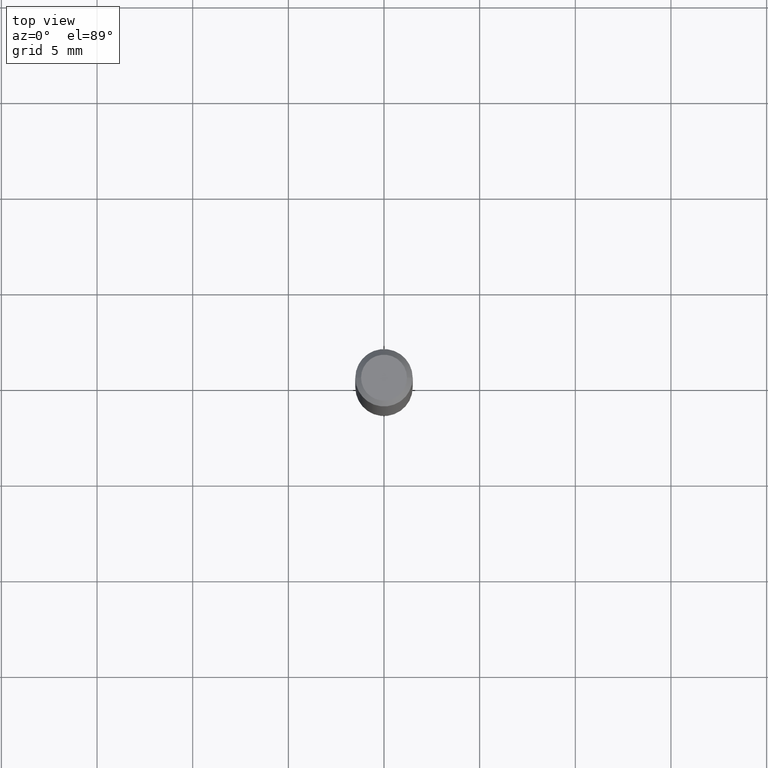
[diagram: clean part render]
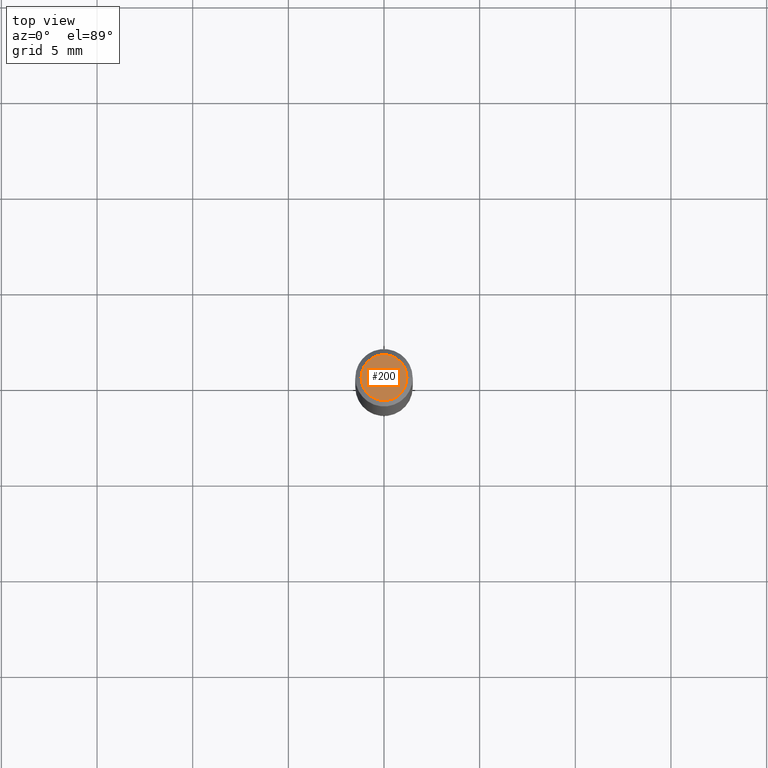
[diagram: same view with one face highlighted and labeled with its STEP entity id]
A machine part, top view. The second image highlights one B-rep face of the part: STEP entity #200.
In plain terms, the highlighted planar face has unit normal (0, -0, -1).
Its self-contained STEP definition (entity closure, byte-faithful):
#18 = PLANE ( 'NONE',  #472 ) ;
#19 = EDGE_CURVE ( 'NONE', #437, #168, #110, .T. ) ;
#63 = EDGE_CURVE ( 'NONE', #168, #437, #76, .T. ) ;
#76 = CIRCLE ( 'NONE', #299, 0.04724000000000000421 ) ;
#97 = DIRECTION ( 'NONE',  ( 2.438088387897960049E-29, -3.491481338843145188E-15, -1.000000000000000000 ) ) ;
#108 = DIRECTION ( 'NONE',  ( 1.000000000000000000, -6.982962677686266711E-15, 4.876185090822587894E-29 ) ) ;
#110 = CIRCLE ( 'NONE', #237, 0.04724000000000000421 ) ;
#160 = EDGE_LOOP ( 'NONE', ( #273, #225 ) ) ;
#168 = VERTEX_POINT ( 'NONE', #285 ) ;
#169 = DIRECTION ( 'NONE',  ( -1.000000000000000000, 6.982962677686265922E-15, -4.876176775795935793E-29 ) ) ;
#177 = DIRECTION ( 'NONE',  ( 1.000000000000000000, -6.982962677686266711E-15, 4.876185090822587894E-29 ) ) ;
#178 = CARTESIAN_POINT ( 'NONE',  ( 8.265746106709734507E-48, -1.180129479067563789E-33, -3.380025165646692144E-19 ) ) ;
#194 = CARTESIAN_POINT ( 'NONE',  ( 4.132873053354867254E-48, -5.900647395337818946E-34, -1.690012582823346072E-19 ) ) ;
#200 = ADVANCED_FACE ( 'NONE', ( #203 ), #18, .F. ) ;
#203 = FACE_OUTER_BOUND ( 'NONE', #160, .T. ) ;
#225 = ORIENTED_EDGE ( 'NONE', *, *, #19, .T. ) ;
#237 = AXIS2_PLACEMENT_3D ( 'NONE', #446, #330, #177 ) ;
#256 = DIRECTION ( 'NONE',  ( -2.445468806185136597E-29, 3.491481338843145583E-15, 1.000000000000000000 ) ) ;
#272 = CARTESIAN_POINT ( 'NONE',  ( 0.04724000000000000421, -3.852183633974369345E-16, -3.380025165621689721E-19 ) ) ;
#273 = ORIENTED_EDGE ( 'NONE', *, *, #63, .T. ) ;
#285 = CARTESIAN_POINT ( 'NONE',  ( -0.04724000000000000421, 3.504923541997677355E-16, -3.380025165670481712E-19 ) ) ;
#299 = AXIS2_PLACEMENT_3D ( 'NONE', #178, #256, #108 ) ;
#330 = DIRECTION ( 'NONE',  ( -2.445468806185136597E-29, 3.491481338843145583E-15, 1.000000000000000000 ) ) ;
#437 = VERTEX_POINT ( 'NONE', #272 ) ;
#446 = CARTESIAN_POINT ( 'NONE',  ( 8.265746106709734507E-48, -1.180129479067563789E-33, -3.380025165646692144E-19 ) ) ;
#472 = AXIS2_PLACEMENT_3D ( 'NONE', #194, #97, #169 ) ;